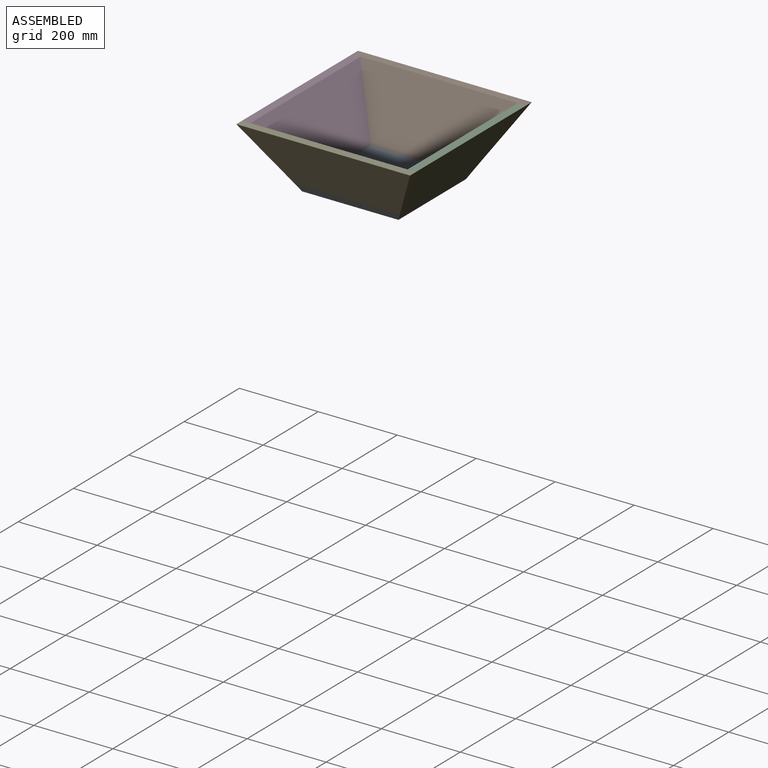
[diagram: assembled view]
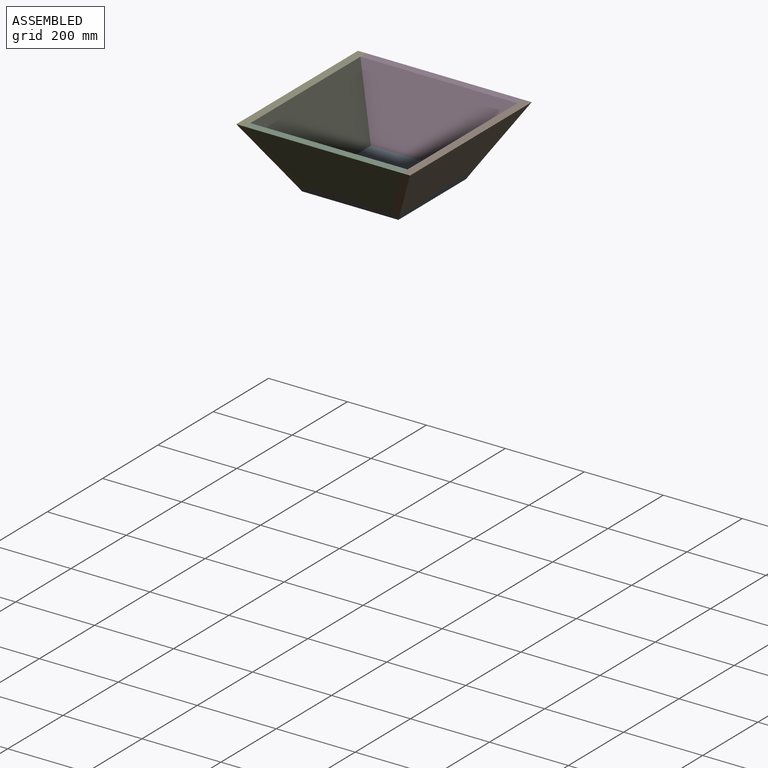
[diagram: assembled view, second angle]
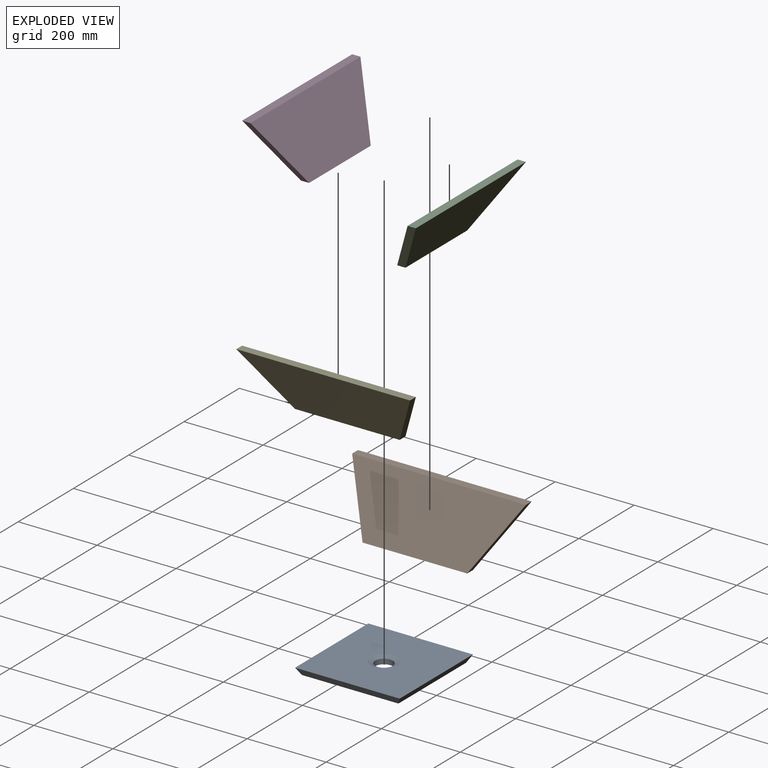
[diagram: exploded view]
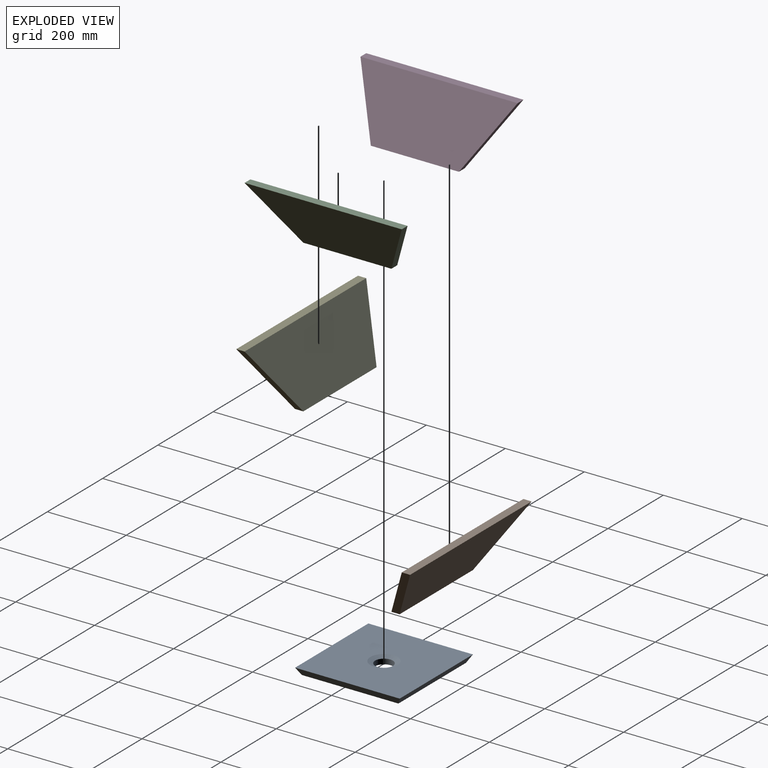
[diagram: exploded view, second angle]
ASSEMBLY  parts=5 mates=4
PART A: 8 faces, bbox 265x265x18 mm
  f0: cylinder r=22.5mm len=45mm, axis (0,0,-1), area 1837.8mm2, adj f2,f3
  f1: plane 265x265mm, normal (0,0,1), area 66470.3mm2, adj f3,f4,f5,f6,f7
  f2: plane 244.22x244.22mm, normal (0,0,-1), area 58050.7mm2, adj f0,f4,f5,f6,f7
  f3: cone r=22.5mm half-angle=67.5deg, axis (0,0,1), area 2342.6mm2, adj f0,f1
  f4: plane 265x18mm, normal (0,-0.87,-0.5), area 5291.9mm2, adj f1,f2,f5,f6
  f5: plane 265x18mm, normal (0.87,0,-0.5), area 5291.9mm2, adj f1,f2,f4,f7
  f6: plane 265x18mm, normal (-0.87,0,-0.5), area 5291.9mm2, adj f1,f2,f4,f7
  f7: plane 265x18mm, normal (0,0.87,-0.5), area 5291.9mm2, adj f1,f2,f5,f6
PART B: 6 faces, bbox 440x108.4x147 mm
  f0: plane 440x147mm, normal (0,0.86,-0.51), area 60302.5mm2, adj f2,f3,f4,f5
  f1: plane 440x147mm, normal (0,-0.86,0.51), area 60302.5mm2, adj f2,f3,f4,f5
  f2: plane 440x20.95mm, normal (0,0,1), area 9216.9mm2, adj f0,f1,f4,f5
  f3: plane 265x20.95mm, normal (0,0,-1), area 5551.1mm2, adj f0,f1,f4,f5
  f4: plane 147x108.45mm, normal (0.86,0,-0.51), area 3583.5mm2, adj f0,f1,f2,f3
  f5: plane 147x108.45mm, normal (-0.86,0,-0.51), area 3583.5mm2, adj f0,f1,f2,f3
PART C: 6 faces, bbox 108.4x398.1x147 mm
  f0: plane 147x108.45mm, normal (0,0.86,-0.51), area 3583.5mm2, adj f1,f2,f3,f4
  f1: plane 398.11x147mm, normal (-0.86,0,0.51), area 53135.5mm2, adj f0,f2,f3,f5
  f2: plane 398.11x20.95mm, normal (0,0,1), area 8339.3mm2, adj f0,f1,f4,f5
  f3: plane 223.11x20.95mm, normal (0,0,-1), area 4673.5mm2, adj f0,f1,f4,f5
  f4: plane 398.11x147mm, normal (0.86,0,-0.51), area 53135.5mm2, adj f0,f2,f3,f5
  f5: plane 147x108.45mm, normal (0,-0.86,-0.51), area 3583.5mm2, adj f1,f2,f3,f4
PART D: same geometry as C
PART E: same geometry as B
PLACE A t=(-151.93,26.65,-63.51)mm
PLACE B t=(-151.93,26.65,-63.51)mm
PLACE C t=(-151.93,26.65,-63.51)mm
PLACE D rot(axis=(0,0,1),180deg) t=(-151.93,26.65,-63.51)mm
PLACE E rot(axis=(0,0,1),180deg) t=(-151.93,26.65,-63.51)mm
MATE fastened B.f3 <-> A.f1  axis (0,0,-1) through (-284.43,159.15,-45.51)mm
MATE fastened C.f3 <-> B.f3  axis (0,0,-1) through (-19.43,138.21,-45.51)mm
MATE fastened D.f3 <-> B.f3  axis (0,0,-1) through (-284.43,138.21,-45.51)mm
MATE fastened E.f3 <-> C.f3  axis (0,0,1) through (-19.43,-84.9,-45.51)mm
